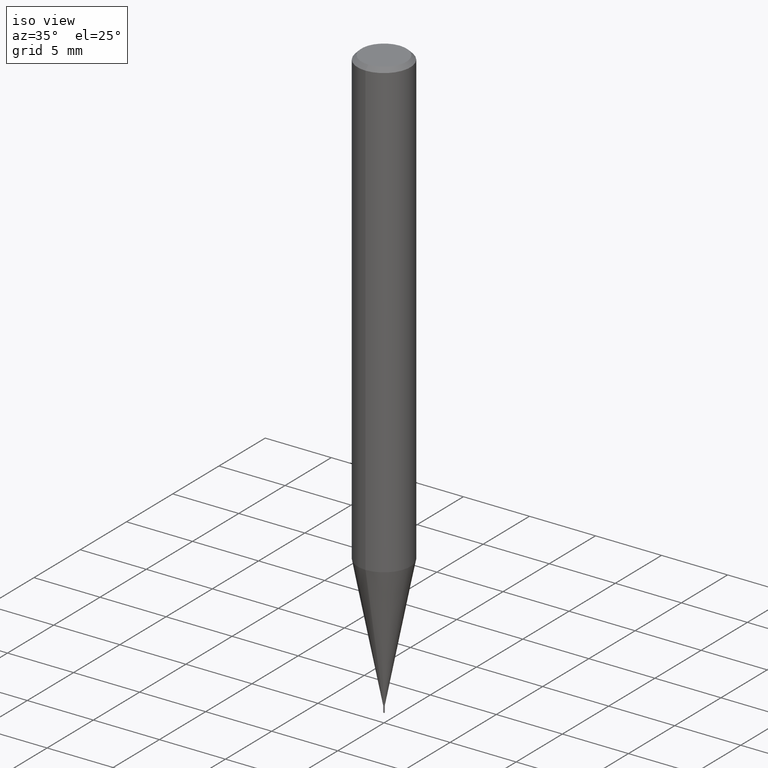
[diagram: clean part render]
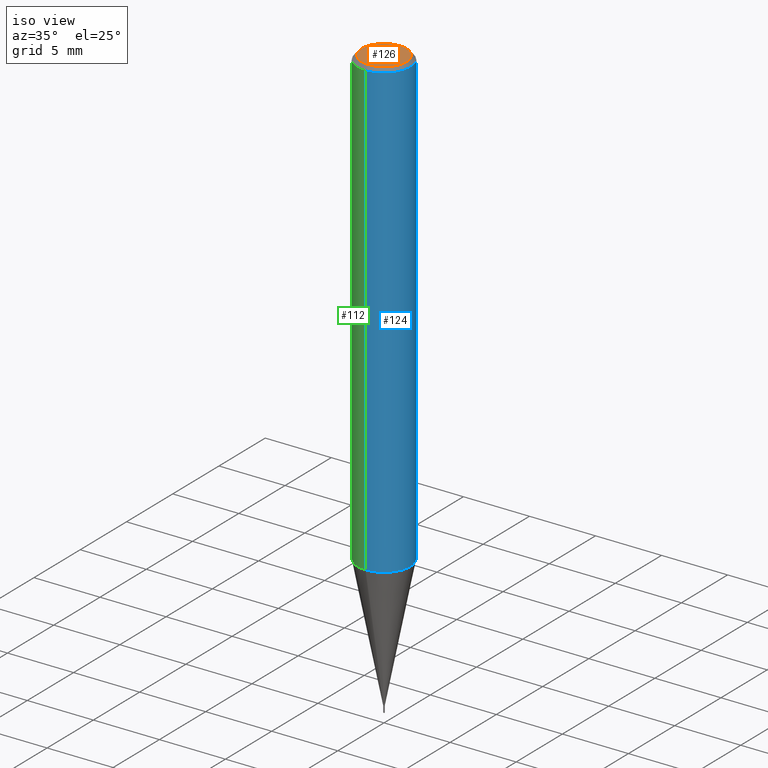
[diagram: same view with three faces highlighted in distinct colors, each labeled with its STEP entity id]
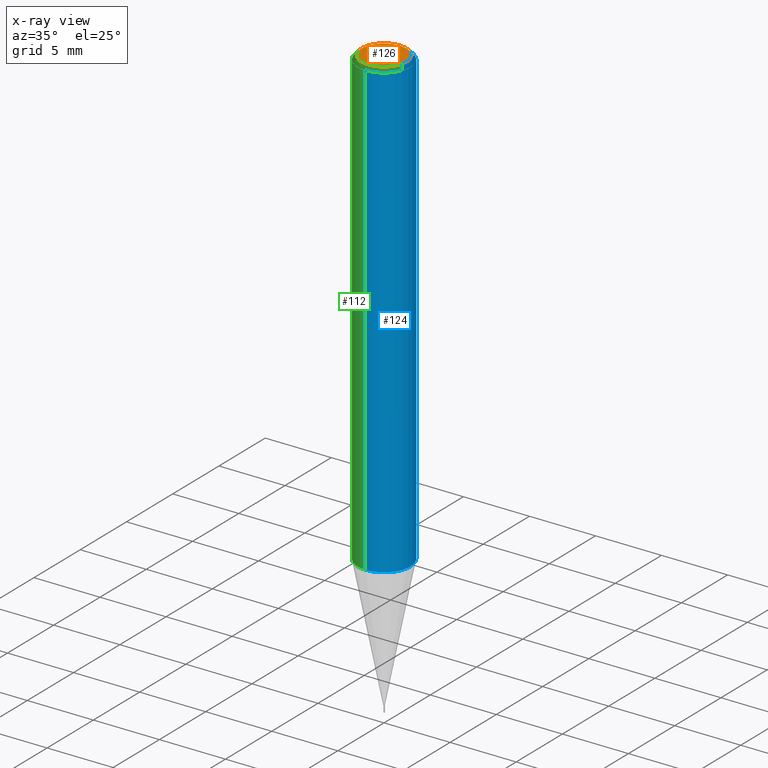
[diagram: x-ray of the same camera — body ghosted, the three highlighted faces saturated]
A machine part, iso view with three faces highlighted in distinct colors.
The next image is the same camera in x-ray (body ghosted, the three faces saturated) — at least one of them is partly hidden behind the body in this view.
Their STEP definitions:

[orange] entity #126 — the highlighted planar face has unit normal (-0, 0, 1).
#102=EDGE_CURVE('',#188,#190,#244,.T.);
#126=ADVANCED_FACE('',(#274),#275,.T.);
#154=EDGE_CURVE('',#190,#188,#308,.T.);
#188=VERTEX_POINT('',#344);
#190=VERTEX_POINT('',#346);
#244=CIRCLE('',#399,1.7);
#274=FACE_OUTER_BOUND('',#434,.T.);
#275=PLANE('',#435);
#308=CIRCLE('',#476,1.7);
#344=CARTESIAN_POINT('',(2.08183080149804E-016,-1.7,0.0));
#346=CARTESIAN_POINT('',(0.0,1.7,0.0));
#399=AXIS2_PLACEMENT_3D('',#569,#570,#571);
#434=EDGE_LOOP('',(#629,#630));
#435=AXIS2_PLACEMENT_3D('',#631,#632,#633);
#476=AXIS2_PLACEMENT_3D('',#677,#678,#679);
#569=CARTESIAN_POINT('',(0.0,0.0,0.0));
#570=DIRECTION('',(0.0,0.0,-1.0));
#571=DIRECTION('',(0.0,1.0,0.0));
#629=ORIENTED_EDGE('',*,*,#154,.F.);
#630=ORIENTED_EDGE('',*,*,#102,.F.);
#631=CARTESIAN_POINT('',(0.0,0.85,0.0));
#632=DIRECTION('',(-0.0,0.0,1.0));
#633=DIRECTION('',(0.0,-1.0,0.0));
#677=CARTESIAN_POINT('',(0.0,0.0,0.0));
#678=DIRECTION('',(0.0,0.0,-1.0));
#679=DIRECTION('',(0.0,1.0,0.0));

[blue] entity #124 — the highlighted cylindrical surface (edge-blend (fillet) strip) has radius 2 mm, axis along (-0, -0, 1).
#100=VERTEX_POINT('',#242);
#124=ADVANCED_FACE('',(#271),#272,.T.);
#128=EDGE_CURVE('',#186,#142,#277,.T.);
#138=VERTEX_POINT('',#289);
#142=VERTEX_POINT('',#294);
#150=EDGE_CURVE('',#138,#142,#304,.T.);
#170=EDGE_CURVE('',#100,#138,#326,.T.);
#186=VERTEX_POINT('',#342);
#206=EDGE_CURVE('',#186,#100,#362,.T.);
#242=CARTESIAN_POINT('',(0.0,2.0,-34.455));
#271=FACE_OUTER_BOUND('',#431,.T.);
#272=CYLINDRICAL_SURFACE('',#432,2.0);
#277=CIRCLE('',#438,2.0);
#289=CARTESIAN_POINT('',(2.44921270764475E-016,-2.0,-34.455));
#294=CARTESIAN_POINT('',(2.44921270764475E-016,-2.0,-0.299999999999997));
#304=LINE('',#469,#470);
#326=CIRCLE('',#498,2.0);
#342=CARTESIAN_POINT('',(0.0,2.0,-0.299999999999997));
#362=LINE('',#544,#545);
#431=EDGE_LOOP('',(#621,#622,#623,#624));
#432=AXIS2_PLACEMENT_3D('',#625,#626,#627);
#438=AXIS2_PLACEMENT_3D('',#634,#635,#636);
#469=CARTESIAN_POINT('',(2.44921270764475E-016,-2.0,-17.3775));
#470=VECTOR('',#673,1.0);
#498=AXIS2_PLACEMENT_3D('',#700,#701,#702);
#544=CARTESIAN_POINT('',(-2.44921270764475E-016,2.0,-17.3775));
#545=VECTOR('',#719,1.0);
#621=ORIENTED_EDGE('',*,*,#206,.F.);
#622=ORIENTED_EDGE('',*,*,#128,.T.);
#623=ORIENTED_EDGE('',*,*,#150,.F.);
#624=ORIENTED_EDGE('',*,*,#170,.F.);
#625=CARTESIAN_POINT('',(0.0,0.0,-17.3775));
#626=DIRECTION('',(-0.0,-0.0,1.0));
#627=DIRECTION('',(0.0,1.0,0.0));
#634=CARTESIAN_POINT('',(0.0,0.0,-0.299999999999997));
#635=DIRECTION('',(0.0,0.0,-1.0));
#636=DIRECTION('',(0.0,1.0,0.0));
#673=DIRECTION('',(-0.0,-0.0,1.0));
#700=CARTESIAN_POINT('',(0.0,0.0,-34.455));
#701=DIRECTION('',(0.0,0.0,-1.0));
#702=DIRECTION('',(0.0,1.0,0.0));
#719=DIRECTION('',(0.0,0.0,-1.0));

[green] entity #112 — the highlighted cylindrical surface (edge-blend (fillet) strip) has radius 2 mm, axis along (-0, -0, 1).
#100=VERTEX_POINT('',#242);
#112=ADVANCED_FACE('',(#257),#258,.T.);
#138=VERTEX_POINT('',#289);
#142=VERTEX_POINT('',#294);
#150=EDGE_CURVE('',#138,#142,#304,.T.);
#186=VERTEX_POINT('',#342);
#204=EDGE_CURVE('',#138,#100,#360,.T.);
#206=EDGE_CURVE('',#186,#100,#362,.T.);
#214=EDGE_CURVE('',#142,#186,#372,.T.);
#242=CARTESIAN_POINT('',(0.0,2.0,-34.455));
#257=FACE_OUTER_BOUND('',#414,.T.);
#258=CYLINDRICAL_SURFACE('',#415,2.0);
#289=CARTESIAN_POINT('',(2.44921270764475E-016,-2.0,-34.455));
#294=CARTESIAN_POINT('',(2.44921270764475E-016,-2.0,-0.299999999999997));
#304=LINE('',#469,#470);
#342=CARTESIAN_POINT('',(0.0,2.0,-0.299999999999997));
#360=CIRCLE('',#541,2.0);
#362=LINE('',#544,#545);
#372=CIRCLE('',#557,2.0);
#414=EDGE_LOOP('',(#598,#599,#600,#601));
#415=AXIS2_PLACEMENT_3D('',#602,#603,#604);
#469=CARTESIAN_POINT('',(2.44921270764475E-016,-2.0,-17.3775));
#470=VECTOR('',#673,1.0);
#541=AXIS2_PLACEMENT_3D('',#716,#717,#718);
#544=CARTESIAN_POINT('',(-2.44921270764475E-016,2.0,-17.3775));
#545=VECTOR('',#719,1.0);
#557=AXIS2_PLACEMENT_3D('',#737,#738,#739);
#598=ORIENTED_EDGE('',*,*,#206,.T.);
#599=ORIENTED_EDGE('',*,*,#204,.F.);
#600=ORIENTED_EDGE('',*,*,#150,.T.);
#601=ORIENTED_EDGE('',*,*,#214,.T.);
#602=CARTESIAN_POINT('',(0.0,0.0,-17.3775));
#603=DIRECTION('',(-0.0,-0.0,1.0));
#604=DIRECTION('',(0.0,1.0,0.0));
#673=DIRECTION('',(-0.0,-0.0,1.0));
#716=CARTESIAN_POINT('',(0.0,0.0,-34.455));
#717=DIRECTION('',(0.0,0.0,-1.0));
#718=DIRECTION('',(0.0,1.0,0.0));
#719=DIRECTION('',(0.0,0.0,-1.0));
#737=CARTESIAN_POINT('',(0.0,0.0,-0.299999999999997));
#738=DIRECTION('',(0.0,0.0,-1.0));
#739=DIRECTION('',(0.0,1.0,0.0));